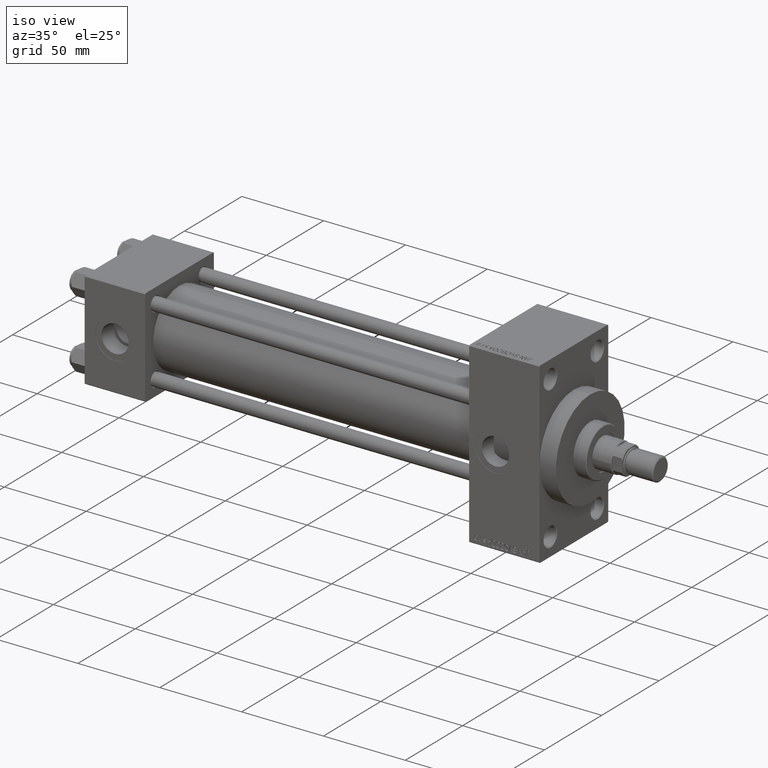
[diagram: clean part render]
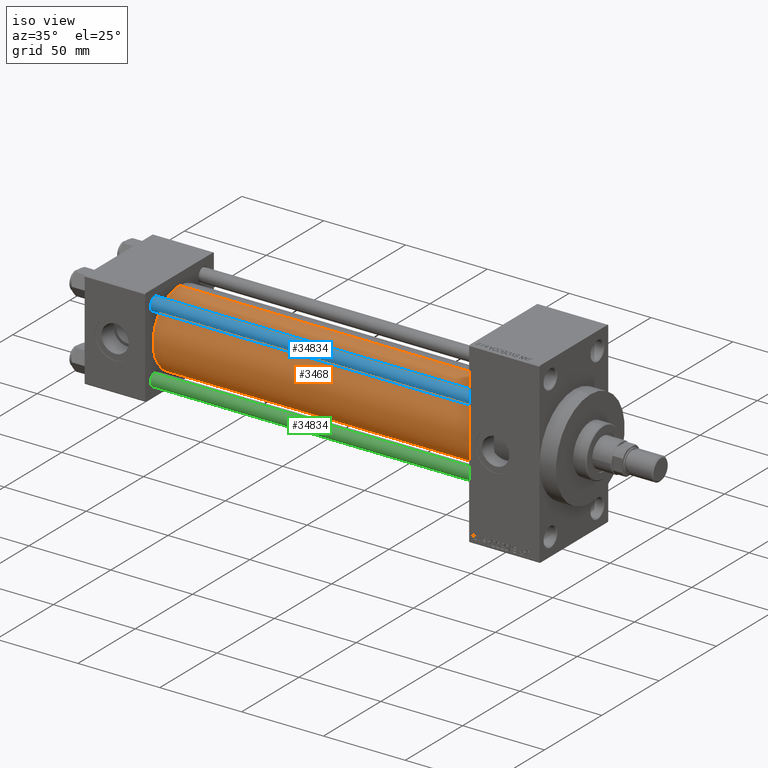
[diagram: same view with three faces highlighted in distinct colors, each labeled with its STEP entity id]
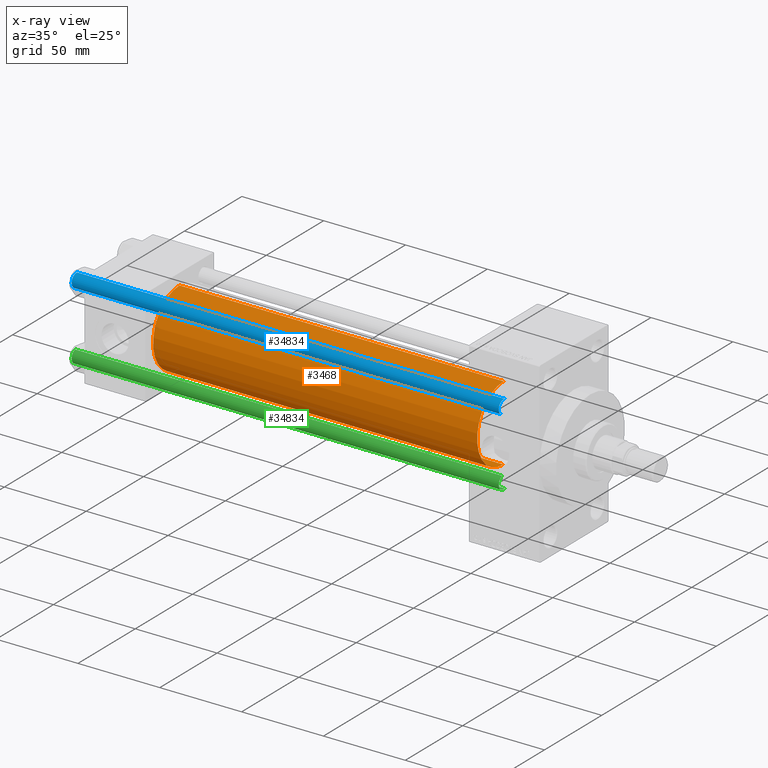
[diagram: x-ray of the same camera — body ghosted, the three highlighted faces saturated]
A machine part, iso view with three faces highlighted in distinct colors.
The next image is the same camera in x-ray (body ghosted, the three faces saturated) — at least one of them is partly hidden behind the body in this view.
Their STEP definitions:

[orange] entity #3468 — the highlighted cylindrical surface (partial cylindrical patch) has radius 23 mm, axis along (-1, -0, -0).
#2422 = EDGE_LOOP ( 'NONE', ( #11402, #26571, #11581, #41242 ) ) ;
#3468 = ADVANCED_FACE ( 'NONE', ( #46109 ), #26974, .T. ) ;
#7547 = CARTESIAN_POINT ( 'NONE',  ( 235.0000000000000284, 2.146024240737016609E-16, -23.00000000000000000 ) ) ;
#7859 = CARTESIAN_POINT ( 'NONE',  ( 235.0000000000000284, -2.602085213965210642E-15, 0.000000000000000000 ) ) ;
#8516 = CARTESIAN_POINT ( 'NONE',  ( 37.00000000000000711, -2.602085213965210642E-15, 0.000000000000000000 ) ) ;
#10044 = VECTOR ( 'NONE', #27309, 1000.000000000000000 ) ;
#11402 = ORIENTED_EDGE ( 'NONE', *, *, #25331, .F. ) ;
#11581 = ORIENTED_EDGE ( 'NONE', *, *, #28337, .T. ) ;
#12017 = DIRECTION ( 'NONE',  ( 1.000000000000000000, -0.000000000000000000, 0.000000000000000000 ) ) ;
#12459 = CARTESIAN_POINT ( 'NONE',  ( 235.0000000000000284, -2.602085213965210642E-15, 23.00000000000000000 ) ) ;
#13468 = AXIS2_PLACEMENT_3D ( 'NONE', #8516, #12017, #30914 ) ;
#15642 = DIRECTION ( 'NONE',  ( 0.000000000000000000, 0.000000000000000000, 1.000000000000000000 ) ) ;
#18182 = EDGE_CURVE ( 'NONE', #24444, #23295, #43572, .T. ) ;
#19306 = DIRECTION ( 'NONE',  ( 1.000000000000000000, 0.000000000000000000, 0.000000000000000000 ) ) ;
#23192 = DIRECTION ( 'NONE',  ( -1.000000000000000000, -0.000000000000000000, -0.000000000000000000 ) ) ;
#23295 = VERTEX_POINT ( 'NONE', #7547 ) ;
#24397 = LINE ( 'NONE', #29167, #30060 ) ;
#24444 = VERTEX_POINT ( 'NONE', #37650 ) ;
#24962 = AXIS2_PLACEMENT_3D ( 'NONE', #7859, #23192, #15642 ) ;
#25331 = EDGE_CURVE ( 'NONE', #23295, #28512, #24397, .T. ) ;
#26571 = ORIENTED_EDGE ( 'NONE', *, *, #18182, .F. ) ;
#26974 = CYLINDRICAL_SURFACE ( 'NONE', #24962, 23.00000000000000000 ) ;
#27309 = DIRECTION ( 'NONE',  ( -1.000000000000000000, -0.000000000000000000, -0.000000000000000000 ) ) ;
#28337 = EDGE_CURVE ( 'NONE', #24444, #33445, #35120, .T. ) ;
#28512 = VERTEX_POINT ( 'NONE', #36836 ) ;
#29167 = CARTESIAN_POINT ( 'NONE',  ( 235.0000000000000284, 2.146024240737016609E-16, -23.00000000000000000 ) ) ;
#30060 = VECTOR ( 'NONE', #36476, 1000.000000000000000 ) ;
#30914 = DIRECTION ( 'NONE',  ( 0.000000000000000000, 0.000000000000000000, 1.000000000000000000 ) ) ;
#33445 = VERTEX_POINT ( 'NONE', #37921 ) ;
#35120 = LINE ( 'NONE', #12459, #10044 ) ;
#36476 = DIRECTION ( 'NONE',  ( -1.000000000000000000, -0.000000000000000000, -0.000000000000000000 ) ) ;
#36836 = CARTESIAN_POINT ( 'NONE',  ( 37.00000000000000711, 2.146024240737016609E-16, -23.00000000000000000 ) ) ;
#37650 = CARTESIAN_POINT ( 'NONE',  ( 235.0000000000000284, -2.602085213965210642E-15, 23.00000000000000000 ) ) ;
#37886 = EDGE_CURVE ( 'NONE', #33445, #28512, #44864, .T. ) ;
#37921 = CARTESIAN_POINT ( 'NONE',  ( 37.00000000000000711, -2.602085213965210642E-15, 23.00000000000000000 ) ) ;
#38199 = DIRECTION ( 'NONE',  ( 0.000000000000000000, 0.000000000000000000, -1.000000000000000000 ) ) ;
#41242 = ORIENTED_EDGE ( 'NONE', *, *, #37886, .T. ) ;
#42726 = CARTESIAN_POINT ( 'NONE',  ( 235.0000000000000284, -2.602085213965210642E-15, 0.000000000000000000 ) ) ;
#43572 = CIRCLE ( 'NONE', #44398, 23.00000000000000000 ) ;
#44398 = AXIS2_PLACEMENT_3D ( 'NONE', #42726, #19306, #38199 ) ;
#44864 = CIRCLE ( 'NONE', #13468, 23.00000000000000000 ) ;
#46109 = FACE_OUTER_BOUND ( 'NONE', #2422, .T. ) ;

[blue] entity #34834 — the highlighted cylindrical surface (edge-blend (fillet) strip) has radius 4 mm, axis along (1, 0, 0).
#400 = AXIS2_PLACEMENT_3D ( 'NONE', #11865, #15638, #4336 ) ;
#2388 = DIRECTION ( 'NONE',  ( -0.000000000000000000, -0.000000000000000000, -1.000000000000000000 ) ) ;
#2523 = VERTEX_POINT ( 'NONE', #33802 ) ;
#4336 = DIRECTION ( 'NONE',  ( 1.000000000000000000, 0.000000000000000000, 0.000000000000000000 ) ) ;
#7772 = EDGE_CURVE ( 'NONE', #37694, #2523, #26499, .T. ) ;
#10467 = ORIENTED_EDGE ( 'NONE', *, *, #35423, .T. ) ;
#10688 = DIRECTION ( 'NONE',  ( -1.000000000000000000, 0.000000000000000000, 0.000000000000000000 ) ) ;
#11399 = DIRECTION ( 'NONE',  ( -0.000000000000000000, -0.000000000000000000, -1.000000000000000000 ) ) ;
#11865 = CARTESIAN_POINT ( 'NONE',  ( 0.000000000000000000, 0.000000000000000000, 0.5000000000000559552 ) ) ;
#12130 = VECTOR ( 'NONE', #11399, 1000.000000000000000 ) ;
#15638 = DIRECTION ( 'NONE',  ( -0.000000000000000000, -0.000000000000000000, 1.000000000000000000 ) ) ;
#18732 = CARTESIAN_POINT ( 'NONE',  ( 4.000000000000000000, 4.898587196589412829E-16, 0.5000000000000559552 ) ) ;
#18800 = ORIENTED_EDGE ( 'NONE', *, *, #47795, .T. ) ;
#18955 = LINE ( 'NONE', #38583, #12130 ) ;
#20380 = ORIENTED_EDGE ( 'NONE', *, *, #39794, .T. ) ;
#21516 = FACE_OUTER_BOUND ( 'NONE', #22898, .T. ) ;
#22149 = CARTESIAN_POINT ( 'NONE',  ( 0.000000000000000000, 0.000000000000000000, 261.5000000000000000 ) ) ;
#22223 = AXIS2_PLACEMENT_3D ( 'NONE', #36863, #2388, #10688 ) ;
#22391 = DIRECTION ( 'NONE',  ( 0.000000000000000000, 0.000000000000000000, -1.000000000000000000 ) ) ;
#22898 = EDGE_LOOP ( 'NONE', ( #10467, #20380, #18800, #37204 ) ) ;
#26436 = VERTEX_POINT ( 'NONE', #41486 ) ;
#26499 = LINE ( 'NONE', #37592, #35581 ) ;
#32681 = AXIS2_PLACEMENT_3D ( 'NONE', #22149, #22391, #37503 ) ;
#33802 = CARTESIAN_POINT ( 'NONE',  ( -4.000000000000000000, 0.000000000000000000, 0.5000000000000559552 ) ) ;
#34834 = ADVANCED_FACE ( 'NONE', ( #21516 ), #45181, .T. ) ;
#35423 = EDGE_CURVE ( 'NONE', #37694, #26436, #44032, .T. ) ;
#35581 = VECTOR ( 'NONE', #41862, 1000.000000000000000 ) ;
#35733 = VERTEX_POINT ( 'NONE', #18732 ) ;
#36863 = CARTESIAN_POINT ( 'NONE',  ( 0.000000000000000000, 0.000000000000000000, 262.0000000000000000 ) ) ;
#37204 = ORIENTED_EDGE ( 'NONE', *, *, #7772, .F. ) ;
#37503 = DIRECTION ( 'NONE',  ( 1.000000000000000000, 0.000000000000000000, 0.000000000000000000 ) ) ;
#37592 = CARTESIAN_POINT ( 'NONE',  ( -4.000000000000000000, 0.000000000000000000, 262.0000000000000000 ) ) ;
#37694 = VERTEX_POINT ( 'NONE', #41258 ) ;
#38583 = CARTESIAN_POINT ( 'NONE',  ( 4.000000000000000000, 4.898587196589412829E-16, 262.0000000000000000 ) ) ;
#39794 = EDGE_CURVE ( 'NONE', #26436, #35733, #18955, .T. ) ;
#41258 = CARTESIAN_POINT ( 'NONE',  ( -4.000000000000000000, 0.000000000000000000, 261.5000000000000000 ) ) ;
#41486 = CARTESIAN_POINT ( 'NONE',  ( 4.000000000000000000, 4.898587196589412829E-16, 261.5000000000000000 ) ) ;
#41862 = DIRECTION ( 'NONE',  ( -0.000000000000000000, -0.000000000000000000, -1.000000000000000000 ) ) ;
#43017 = CIRCLE ( 'NONE', #400, 4.000000000000000000 ) ;
#44032 = CIRCLE ( 'NONE', #32681, 4.000000000000000000 ) ;
#45181 = CYLINDRICAL_SURFACE ( 'NONE', #22223, 4.000000000000000000 ) ;
#47795 = EDGE_CURVE ( 'NONE', #35733, #2523, #43017, .T. ) ;

[green] entity #34834 — the highlighted cylindrical surface (edge-blend (fillet) strip) has radius 4 mm, axis along (-1, 0, 0).
#400 = AXIS2_PLACEMENT_3D ( 'NONE', #11865, #15638, #4336 ) ;
#2388 = DIRECTION ( 'NONE',  ( -0.000000000000000000, -0.000000000000000000, -1.000000000000000000 ) ) ;
#2523 = VERTEX_POINT ( 'NONE', #33802 ) ;
#4336 = DIRECTION ( 'NONE',  ( 1.000000000000000000, 0.000000000000000000, 0.000000000000000000 ) ) ;
#7772 = EDGE_CURVE ( 'NONE', #37694, #2523, #26499, .T. ) ;
#10467 = ORIENTED_EDGE ( 'NONE', *, *, #35423, .T. ) ;
#10688 = DIRECTION ( 'NONE',  ( -1.000000000000000000, 0.000000000000000000, 0.000000000000000000 ) ) ;
#11399 = DIRECTION ( 'NONE',  ( -0.000000000000000000, -0.000000000000000000, -1.000000000000000000 ) ) ;
#11865 = CARTESIAN_POINT ( 'NONE',  ( 0.000000000000000000, 0.000000000000000000, 0.5000000000000559552 ) ) ;
#12130 = VECTOR ( 'NONE', #11399, 1000.000000000000000 ) ;
#15638 = DIRECTION ( 'NONE',  ( -0.000000000000000000, -0.000000000000000000, 1.000000000000000000 ) ) ;
#18732 = CARTESIAN_POINT ( 'NONE',  ( 4.000000000000000000, 4.898587196589412829E-16, 0.5000000000000559552 ) ) ;
#18800 = ORIENTED_EDGE ( 'NONE', *, *, #47795, .T. ) ;
#18955 = LINE ( 'NONE', #38583, #12130 ) ;
#20380 = ORIENTED_EDGE ( 'NONE', *, *, #39794, .T. ) ;
#21516 = FACE_OUTER_BOUND ( 'NONE', #22898, .T. ) ;
#22149 = CARTESIAN_POINT ( 'NONE',  ( 0.000000000000000000, 0.000000000000000000, 261.5000000000000000 ) ) ;
#22223 = AXIS2_PLACEMENT_3D ( 'NONE', #36863, #2388, #10688 ) ;
#22391 = DIRECTION ( 'NONE',  ( 0.000000000000000000, 0.000000000000000000, -1.000000000000000000 ) ) ;
#22898 = EDGE_LOOP ( 'NONE', ( #10467, #20380, #18800, #37204 ) ) ;
#26436 = VERTEX_POINT ( 'NONE', #41486 ) ;
#26499 = LINE ( 'NONE', #37592, #35581 ) ;
#32681 = AXIS2_PLACEMENT_3D ( 'NONE', #22149, #22391, #37503 ) ;
#33802 = CARTESIAN_POINT ( 'NONE',  ( -4.000000000000000000, 0.000000000000000000, 0.5000000000000559552 ) ) ;
#34834 = ADVANCED_FACE ( 'NONE', ( #21516 ), #45181, .T. ) ;
#35423 = EDGE_CURVE ( 'NONE', #37694, #26436, #44032, .T. ) ;
#35581 = VECTOR ( 'NONE', #41862, 1000.000000000000000 ) ;
#35733 = VERTEX_POINT ( 'NONE', #18732 ) ;
#36863 = CARTESIAN_POINT ( 'NONE',  ( 0.000000000000000000, 0.000000000000000000, 262.0000000000000000 ) ) ;
#37204 = ORIENTED_EDGE ( 'NONE', *, *, #7772, .F. ) ;
#37503 = DIRECTION ( 'NONE',  ( 1.000000000000000000, 0.000000000000000000, 0.000000000000000000 ) ) ;
#37592 = CARTESIAN_POINT ( 'NONE',  ( -4.000000000000000000, 0.000000000000000000, 262.0000000000000000 ) ) ;
#37694 = VERTEX_POINT ( 'NONE', #41258 ) ;
#38583 = CARTESIAN_POINT ( 'NONE',  ( 4.000000000000000000, 4.898587196589412829E-16, 262.0000000000000000 ) ) ;
#39794 = EDGE_CURVE ( 'NONE', #26436, #35733, #18955, .T. ) ;
#41258 = CARTESIAN_POINT ( 'NONE',  ( -4.000000000000000000, 0.000000000000000000, 261.5000000000000000 ) ) ;
#41486 = CARTESIAN_POINT ( 'NONE',  ( 4.000000000000000000, 4.898587196589412829E-16, 261.5000000000000000 ) ) ;
#41862 = DIRECTION ( 'NONE',  ( -0.000000000000000000, -0.000000000000000000, -1.000000000000000000 ) ) ;
#43017 = CIRCLE ( 'NONE', #400, 4.000000000000000000 ) ;
#44032 = CIRCLE ( 'NONE', #32681, 4.000000000000000000 ) ;
#45181 = CYLINDRICAL_SURFACE ( 'NONE', #22223, 4.000000000000000000 ) ;
#47795 = EDGE_CURVE ( 'NONE', #35733, #2523, #43017, .T. ) ;